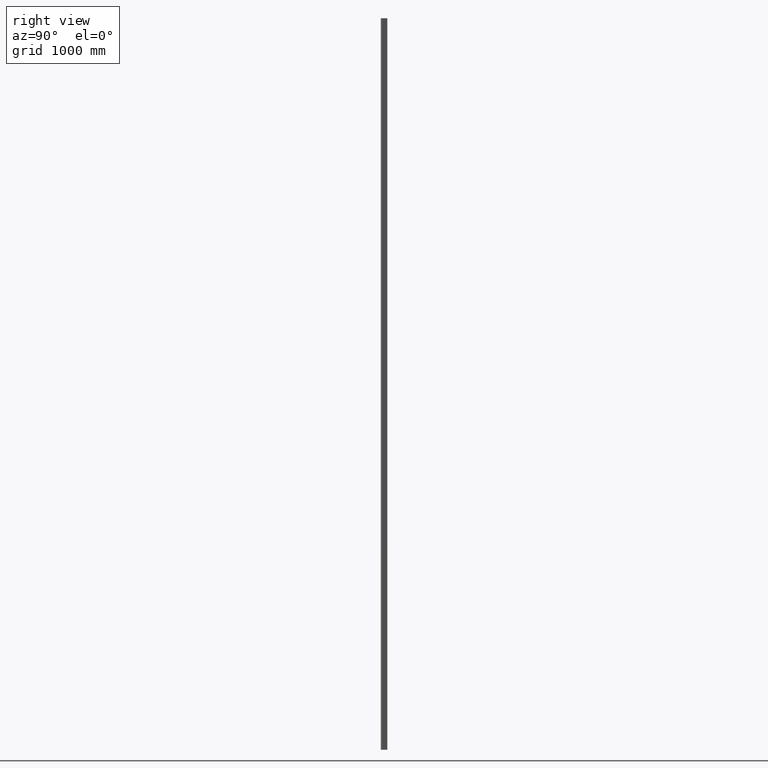
[diagram: clean part render]
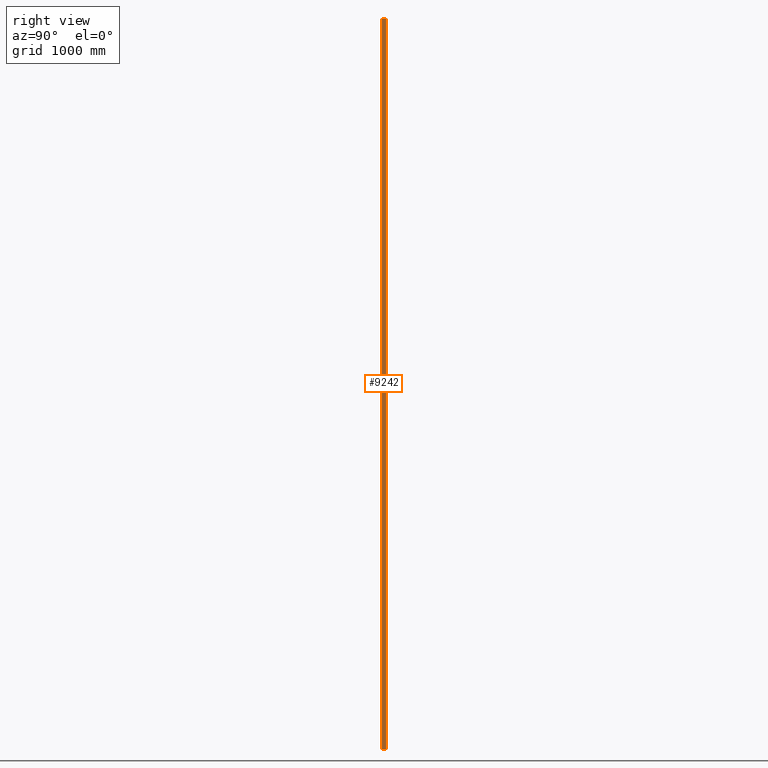
[diagram: same view with one face highlighted and labeled with its STEP entity id]
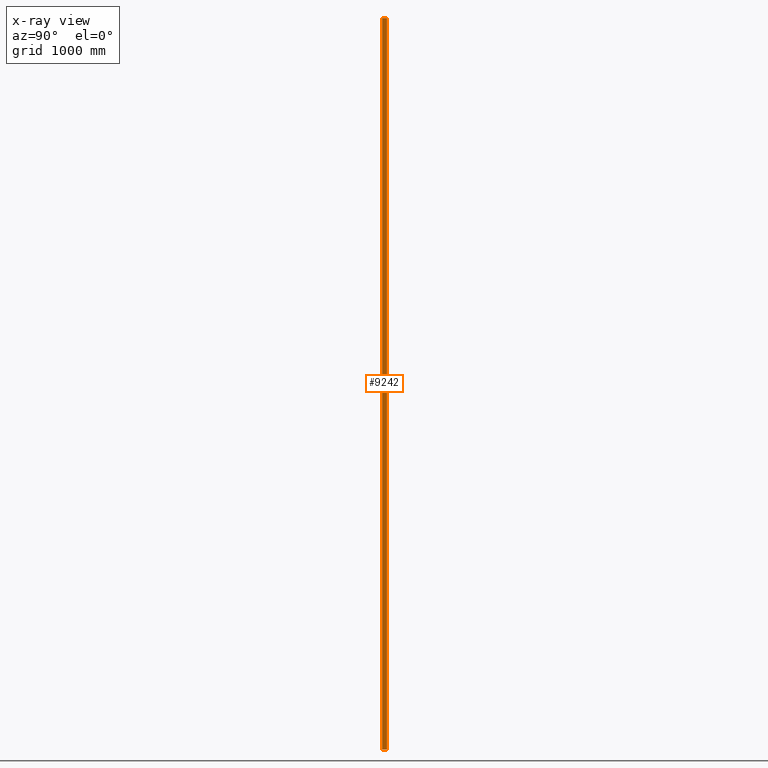
[diagram: x-ray of the same camera — body ghosted, the highlighted face saturated]
A machine part, right view. The second image highlights one B-rep face of the part: STEP entity #9242.
The next image is the same camera in x-ray: the body ghosted, the highlighted face saturated — about 0% of this face is hidden behind the body in this view.
In plain terms, the highlighted planar face has unit normal (-1, 0, 0).
Its self-contained STEP definition (entity closure, byte-faithful):
#97 = CARTESIAN_POINT ( 'NONE',  ( 20.99999999999999645, 49.99999999999998579, 3000.000000000000000 ) ) ;
#137 = DIRECTION ( 'NONE',  ( 0.000000000000000000, 0.000000000000000000, 1.000000000000000000 ) ) ;
#696 = DIRECTION ( 'NONE',  ( -0.000000000000000000, 1.000000000000000000, -0.000000000000000000 ) ) ;
#1145 = DIRECTION ( 'NONE',  ( -1.000000000000000000, 0.000000000000000000, 0.000000000000000000 ) ) ;
#1149 = DIRECTION ( 'NONE',  ( -0.000000000000000000, 1.000000000000000000, -0.000000000000000000 ) ) ;
#1194 = LINE ( 'NONE', #5765, #3174 ) ;
#2188 = VERTEX_POINT ( 'NONE', #97 ) ;
#2253 = CARTESIAN_POINT ( 'NONE',  ( 20.99999999999999645, 49.99999999999998579, -3000.000000000000000 ) ) ;
#2598 = LINE ( 'NONE', #10396, #6119 ) ;
#2745 = VERTEX_POINT ( 'NONE', #12543 ) ;
#3174 = VECTOR ( 'NONE', #6749, 1000.000000000000000 ) ;
#3852 = ORIENTED_EDGE ( 'NONE', *, *, #9951, .F. ) ;
#3940 = CARTESIAN_POINT ( 'NONE',  ( 20.99999999999999645, 49.99999999999998579, 3000.000000000000000 ) ) ;
#4484 = ORIENTED_EDGE ( 'NONE', *, *, #4737, .F. ) ;
#4550 = CARTESIAN_POINT ( 'NONE',  ( 20.99999999999999645, 49.99999999999998579, 3000.000000000000000 ) ) ;
#4737 = EDGE_CURVE ( 'NONE', #2188, #10185, #2598, .T. ) ;
#5765 = CARTESIAN_POINT ( 'NONE',  ( 21.00000000000000000, 10.96601461306008574, 3000.000000000000000 ) ) ;
#6119 = VECTOR ( 'NONE', #12409, 1000.000000000000000 ) ;
#6589 = VERTEX_POINT ( 'NONE', #8037 ) ;
#6749 = DIRECTION ( 'NONE',  ( -0.000000000000000000, -0.000000000000000000, -1.000000000000000000 ) ) ;
#7814 = LINE ( 'NONE', #2253, #8866 ) ;
#8037 = CARTESIAN_POINT ( 'NONE',  ( 21.00000000000000000, 10.96601461306008574, -3000.000000000000000 ) ) ;
#8122 = EDGE_LOOP ( 'NONE', ( #9721, #4484, #3852, #10376 ) ) ;
#8227 = CARTESIAN_POINT ( 'NONE',  ( 20.99999999999999645, 49.99999999999998579, -3000.000000000000000 ) ) ;
#8866 = VECTOR ( 'NONE', #1149, 1000.000000000000000 ) ;
#9207 = AXIS2_PLACEMENT_3D ( 'NONE', #3940, #1145, #137 ) ;
#9242 = ADVANCED_FACE ( 'NONE', ( #12379 ), #10751, .F. ) ;
#9666 = EDGE_CURVE ( 'NONE', #2745, #6589, #1194, .T. ) ;
#9721 = ORIENTED_EDGE ( 'NONE', *, *, #12660, .T. ) ;
#9951 = EDGE_CURVE ( 'NONE', #2745, #2188, #11183, .T. ) ;
#10185 = VERTEX_POINT ( 'NONE', #8227 ) ;
#10376 = ORIENTED_EDGE ( 'NONE', *, *, #9666, .T. ) ;
#10396 = CARTESIAN_POINT ( 'NONE',  ( 20.99999999999999645, 49.99999999999998579, 3000.000000000000000 ) ) ;
#10751 = PLANE ( 'NONE',  #9207 ) ;
#11183 = LINE ( 'NONE', #4550, #12523 ) ;
#12379 = FACE_OUTER_BOUND ( 'NONE', #8122, .T. ) ;
#12409 = DIRECTION ( 'NONE',  ( -0.000000000000000000, -0.000000000000000000, -1.000000000000000000 ) ) ;
#12523 = VECTOR ( 'NONE', #696, 1000.000000000000000 ) ;
#12543 = CARTESIAN_POINT ( 'NONE',  ( 21.00000000000000000, 10.96601461306008574, 3000.000000000000000 ) ) ;
#12660 = EDGE_CURVE ( 'NONE', #6589, #10185, #7814, .T. ) ;